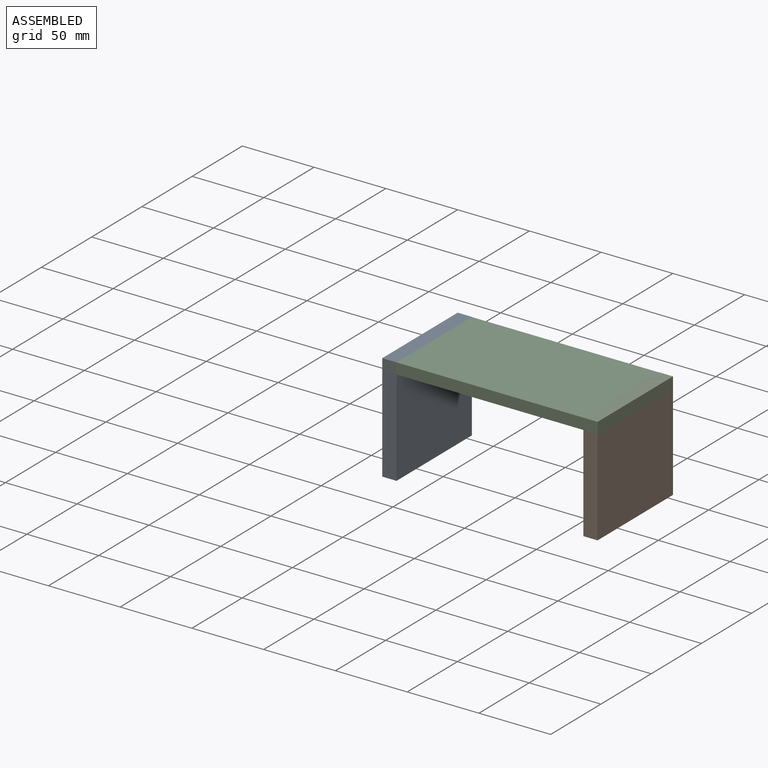
[diagram: assembled view]
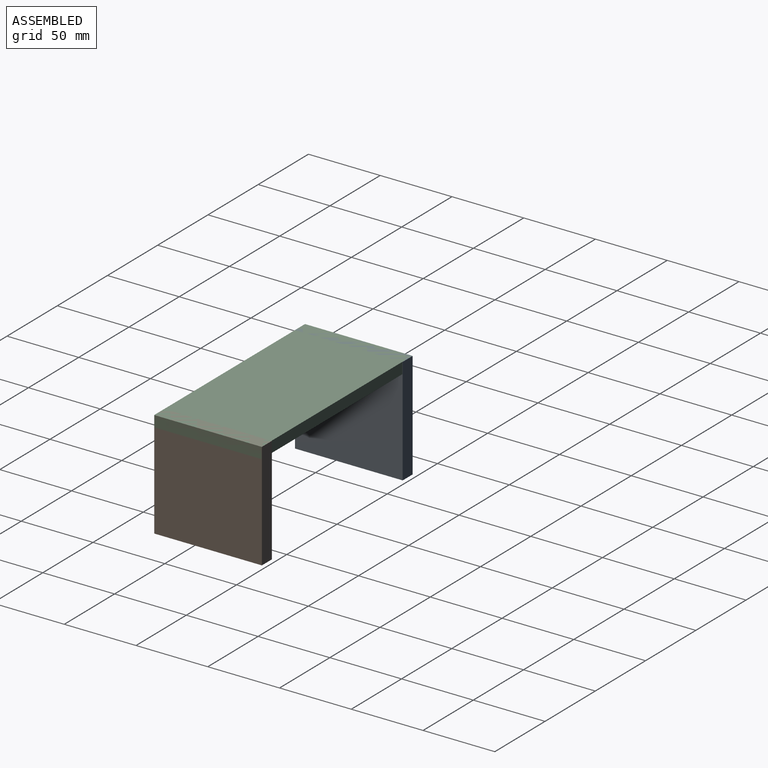
[diagram: assembled view, second angle]
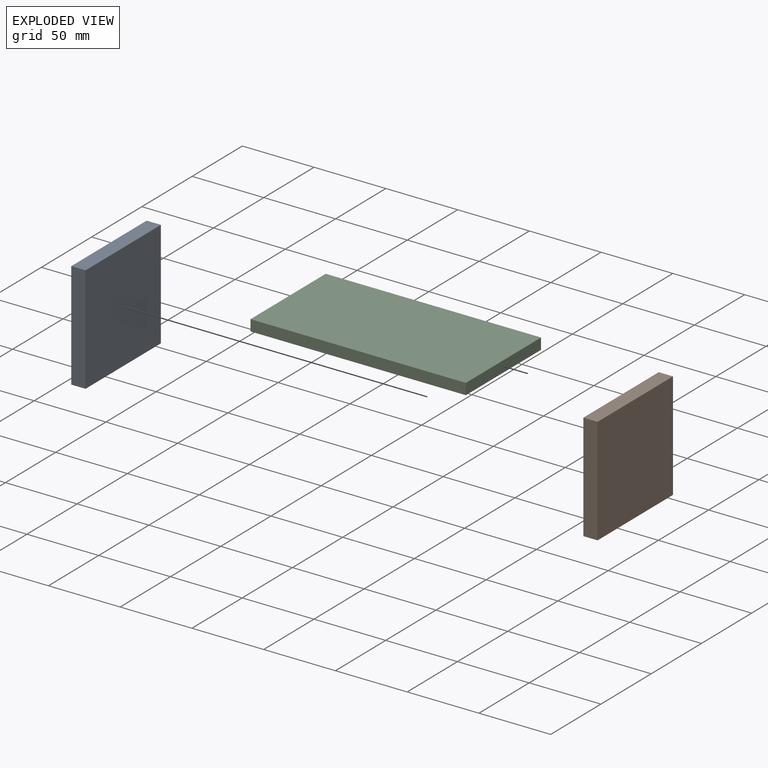
[diagram: exploded view]
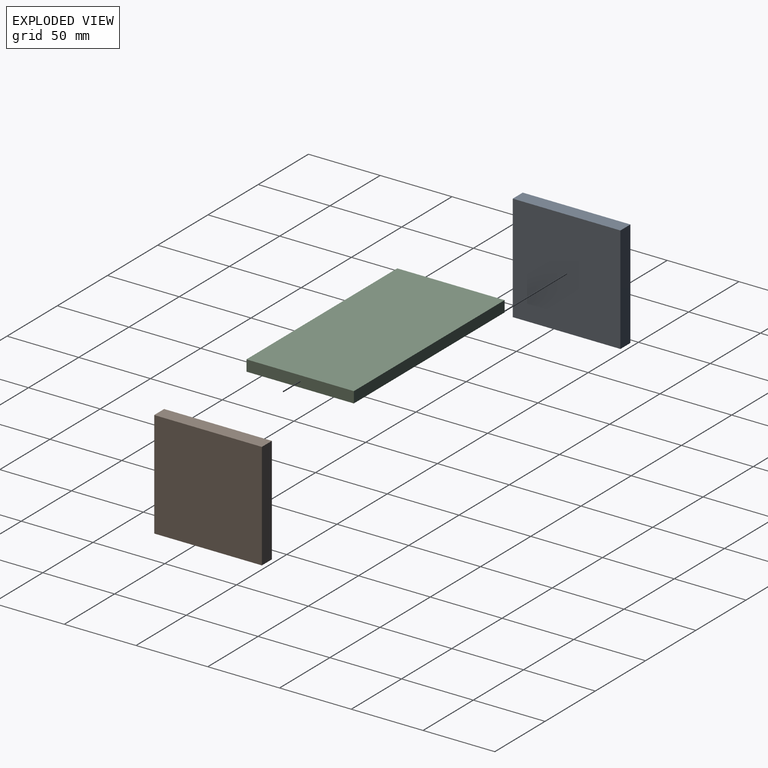
[diagram: exploded view, second angle]
ASSEMBLY  parts=3 mates=2
PART A: 6 faces, bbox 74.6x75x9.9 mm
  f0: plane 75.03x9.94mm, normal (-1,0,0), area 745.5mm2, adj f1,f3,f4,f5
  f1: plane 74.62x9.94mm, normal (0,-1,0), area 741.5mm2, adj f0,f2,f4,f5
  f2: plane 75.03x9.94mm, normal (1,0,0), area 745.5mm2, adj f1,f3,f4,f5
  f3: plane 74.62x9.94mm, normal (0,1,0), area 741.5mm2, adj f0,f2,f4,f5
  f4: plane 75.03x74.62mm, normal (0,0,1), area 5598.8mm2, adj f0,f1,f2,f3
  f5: plane 75.03x74.62mm, normal (0,0,-1), area 5598.8mm2, adj f0,f1,f2,f3
PART B: same geometry as A
PART C: 6 faces, bbox 150.1x74.8x7.7 mm
  f0: plane 150.06x7.75mm, normal (0,1,0), area 1162.6mm2, adj f1,f3,f4,f5
  f1: plane 74.83x7.75mm, normal (-1,0,0), area 579.7mm2, adj f0,f2,f4,f5
  f2: plane 150.06x7.75mm, normal (0,-1,0), area 1162.6mm2, adj f1,f3,f4,f5
  f3: plane 74.83x7.75mm, normal (1,0,0), area 579.7mm2, adj f0,f2,f4,f5
  f4: plane 150.06x74.83mm, normal (0,0,1), area 11228.3mm2, adj f0,f1,f2,f3
  f5: plane 150.06x74.83mm, normal (0,0,-1), area 11228.3mm2, adj f0,f1,f2,f3
PLACE A rot(axis=(0,-1,0),90deg) t=(-65.09,-74.83,7.75)mm
PLACE B rot(axis=(0,1,0),90deg) t=(65.09,-74.83,-66.87)mm
PLACE C at identity
MATE fastened A.f4 <-> C.f1  axis (-1,0,0) through (-75.03,-74.83,7.75)mm
MATE fastened B.f4 <-> C.f3  axis (1,0,0) through (75.03,-74.83,7.75)mm
